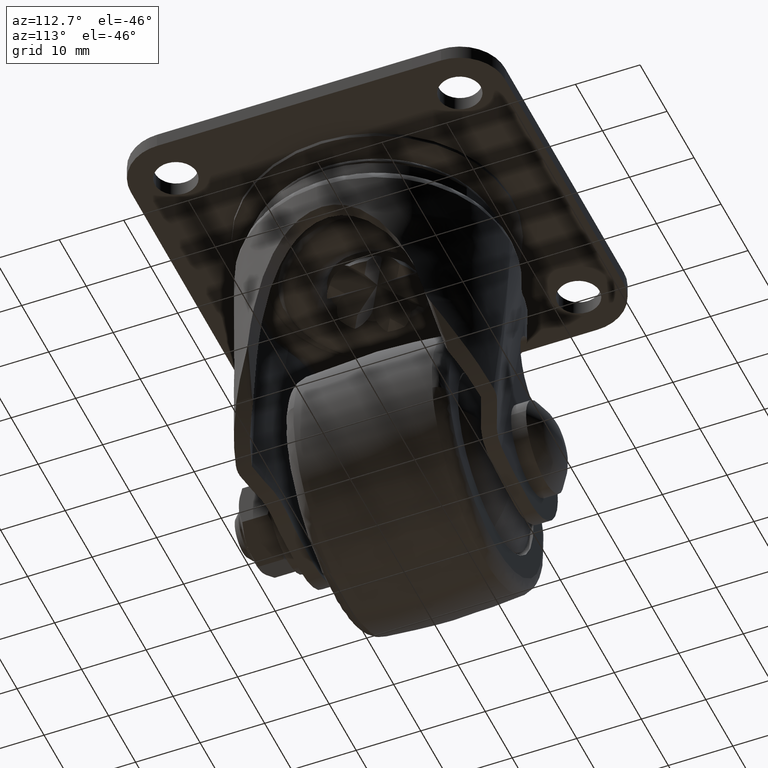
[diagram: clean part render]
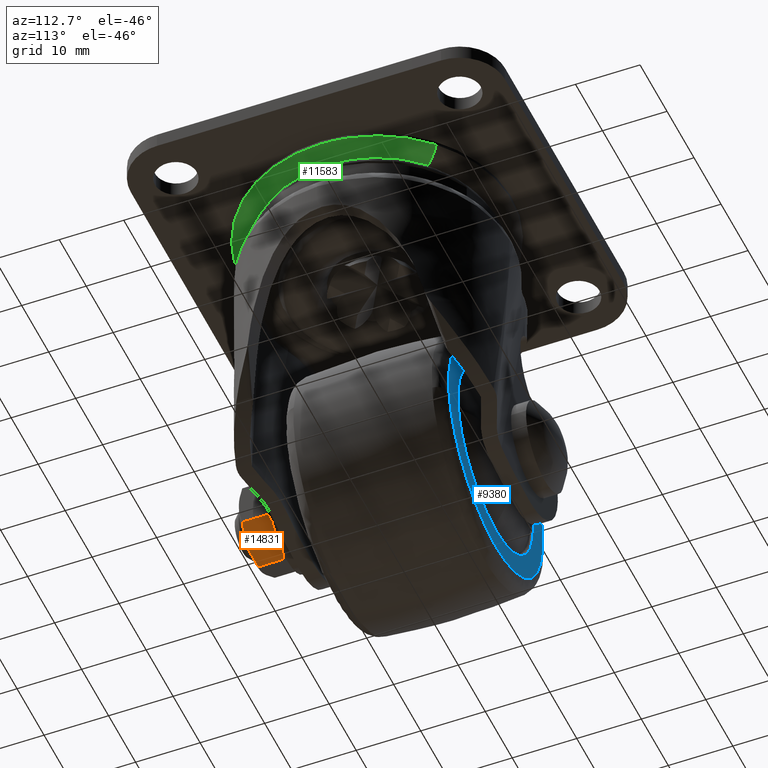
[diagram: same view with three faces highlighted in distinct colors, each labeled with its STEP entity id]
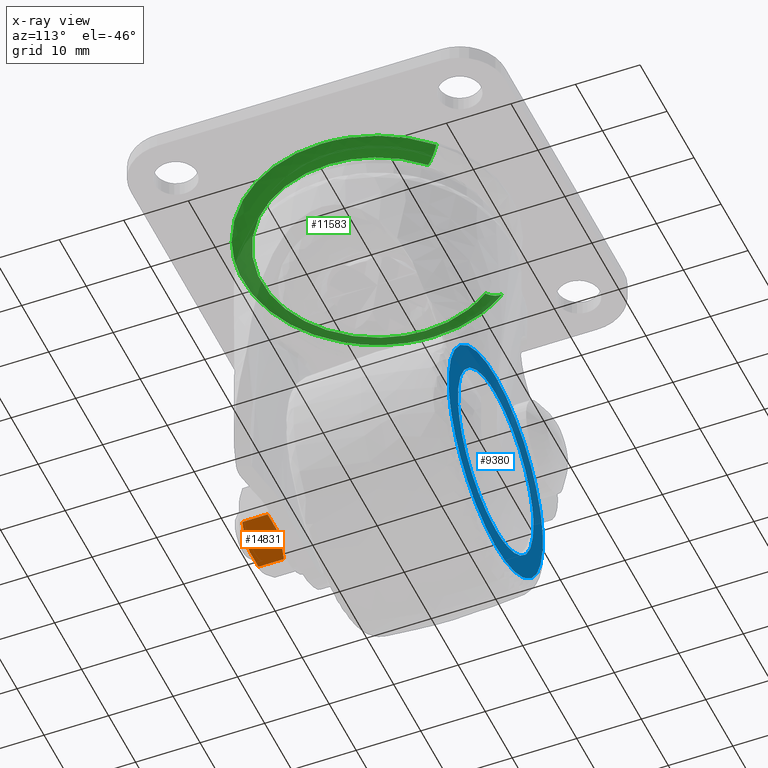
[diagram: x-ray of the same camera — body ghosted, the three highlighted faces saturated]
A machine part, auxiliary view with three faces highlighted in distinct colors.
The next image is the same camera in x-ray (body ghosted, the three faces saturated) — at least one of them is partly hidden behind the body in this view.
Their STEP definitions:

[orange] entity #14831 — the highlighted face is a freeform B-spline surface patch.
#14656=CARTESIAN_POINT('',(-14.0,-24.264096525529201,-46.928187500000099));
#14657=VERTEX_POINT('',#14656);
#14677=CARTESIAN_POINT('',(-8.000005933298899,-24.264099718076199,-43.464084872033098));
#14678=VERTEX_POINT('',#14677);
#14679=CARTESIAN_POINT('',(-14.0,-24.264096525529201,-46.928187500000099));
#14680=CARTESIAN_POINT('',(-13.510160033704130,-24.427376046526771,-46.645377901246221));
#14681=CARTESIAN_POINT('',(-13.016748605405910,-24.561948162100862,-46.360506315301983));
#14682=CARTESIAN_POINT('',(-12.268911799848590,-24.701768662649862,-45.928741981100472));
#14683=CARTESIAN_POINT('',(-12.018342364615959,-24.738011102991891,-45.784075464862568));
#14684=CARTESIAN_POINT('',(-11.514285193123500,-24.787038685045850,-45.493057548344403));
#14685=CARTESIAN_POINT('',(-11.260794935120231,-24.799803556988330,-45.346704692132981));
#14686=CARTESIAN_POINT('',(-10.878212515178010,-24.800085418194449,-45.125820345981559));
#14687=CARTESIAN_POINT('',(-10.750038740140500,-24.797025665904538,-45.051819087645633));
#14688=CARTESIAN_POINT('',(-10.494854432342491,-24.784697134549909,-44.904488170076057));
#14689=CARTESIAN_POINT('',(-10.367705578286440,-24.775442603164539,-44.831078650902882));
#14690=CARTESIAN_POINT('',(-9.987531361267406,-24.738809426387050,-44.611584683138858));
#14691=CARTESIAN_POINT('',(-9.735781318155111,-24.702540461578050,-44.466236541750561));
#14692=CARTESIAN_POINT('',(-8.985013239055673,-24.562488967427690,-44.032779833812242));
#14693=CARTESIAN_POINT('',(-8.490459790177887,-24.427583574715548,-43.747248901134327));
#14694=CARTESIAN_POINT('',(-8.000005933298899,-24.264099718076199,-43.464084872033098));
#14695=B_SPLINE_CURVE_WITH_KNOTS('',3,(#14679,#14680,#14681,#14682,#14683,#14684,#14685,#14686,#14687,#14688,#14689,#14690,#14691,#14692,#14693,#14694),.UNSPECIFIED.,.F.,.U.,(4,2,2,2,2,2,2,4),(0.000001580969679,0.250000000000000,0.375000000000001,0.500000000000002,0.562500000000002,0.625000000000002,0.750000000000001,1.0),.UNSPECIFIED.);
#14696=EDGE_CURVE('',#14657,#14678,#14695,.T.);
#14759=CARTESIAN_POINT('',(-14.0,-20.335906948924901,-46.928187500000099));
#14760=VERTEX_POINT('',#14759);
#14761=CARTESIAN_POINT('',(-14.0,-20.335906948924901,-46.928187500000099));
#14762=CARTESIAN_POINT('',(-14.0,-24.264096525529201,-46.928187500000099));
#14763=QUASI_UNIFORM_CURVE('',1,(#14761,#14762),.UNSPECIFIED.,.F.,.U.);
#14764=EDGE_CURVE('',#14760,#14657,#14763,.T.);
#14796=CARTESIAN_POINT('',(-7.700296950423763,-25.049742740288650,-43.291068394376637));
#14797=CARTESIAN_POINT('',(-14.299693263939711,-25.049742740288650,-47.101230955884468));
#14798=CARTESIAN_POINT('',(-7.700296950423763,-19.550259561729298,-43.291068394376637));
#14799=CARTESIAN_POINT('',(-14.299693263939711,-19.550259561729298,-47.101230955884468));
#14800=B_SPLINE_SURFACE_WITH_KNOTS('',1,1,((#14796,#14798),(#14797,#14799)),.UNSPECIFIED.,.F.,.F.,.U.,(2,2),(2,2),(0.0,7.620326137900116),(0.0,5.499483178559355),.UNSPECIFIED.);
#14801=CARTESIAN_POINT('',(-8.000013789606960,-20.335898000000000,-43.464094038780253));
#14802=VERTEX_POINT('',#14801);
#14803=CARTESIAN_POINT('',(-8.000013789606960,-20.335898000000000,-43.464094038780253));
#14804=CARTESIAN_POINT('',(-8.000005933298899,-24.264099718076199,-43.464084872033098));
#14805=QUASI_UNIFORM_CURVE('',1,(#14803,#14804),.UNSPECIFIED.,.F.,.U.);
#14806=EDGE_CURVE('',#14802,#14678,#14805,.T.);
#14807=ORIENTED_EDGE('',*,*,#14806,.T.);
#14808=ORIENTED_EDGE('',*,*,#14696,.F.);
#14809=ORIENTED_EDGE('',*,*,#14764,.F.);
#14810=CARTESIAN_POINT('',(-8.000013789606960,-20.335898000000000,-43.464094038780253));
#14811=CARTESIAN_POINT('',(-8.489854293159919,-20.172619443458981,-43.746903569652027));
#14812=CARTESIAN_POINT('',(-8.983266226447073,-20.038048526862770,-44.031775066327668));
#14813=CARTESIAN_POINT('',(-9.731103560918101,-19.898230181013101,-44.463539128703303));
#14814=CARTESIAN_POINT('',(-9.981673064135141,-19.861988517311740,-44.608205490797857));
#14815=CARTESIAN_POINT('',(-10.485730325991151,-19.812962525529429,-44.899223070446830));
#14816=CARTESIAN_POINT('',(-10.739220606288219,-19.800198466880769,-45.045575743881123));
#14817=CARTESIAN_POINT('',(-11.121803016198120,-19.799917800744140,-45.266459788956247));
#14818=CARTESIAN_POINT('',(-11.249976769642190,-19.802977947963640,-45.340460935898342));
#14819=CARTESIAN_POINT('',(-11.505160981349350,-19.815307240719019,-45.487791601033869));
#14820=CARTESIAN_POINT('',(-11.632309784315559,-19.824562140008211,-45.561200992574499));
#14821=CARTESIAN_POINT('',(-12.012483840901711,-19.861196372792190,-45.780694574287132));
#14822=CARTESIAN_POINT('',(-12.264233767607459,-19.897465977074649,-45.926042454162797));
#14823=CARTESIAN_POINT('',(-13.014998672064980,-20.037518629107961,-46.359496749764332));
#14824=CARTESIAN_POINT('',(-13.509549115496171,-20.172423829625370,-46.645025565541587));
#14825=CARTESIAN_POINT('',(-14.0,-20.335906948924901,-46.928187500000099));
#14826=B_SPLINE_CURVE_WITH_KNOTS('',3,(#14810,#14811,#14812,#14813,#14814,#14815,#14816,#14817,#14818,#14819,#14820,#14821,#14822,#14823,#14824,#14825),.UNSPECIFIED.,.F.,.U.,(4,2,2,2,2,2,2,4),(0.000001443655214,0.249999999999998,0.374999999999997,0.499999999999996,0.562499999999996,0.624999999999996,0.749999999999997,0.999998596444064),.UNSPECIFIED.);
#14827=EDGE_CURVE('',#14802,#14760,#14826,.T.);
#14828=ORIENTED_EDGE('',*,*,#14827,.F.);
#14829=EDGE_LOOP('',(#14807,#14808,#14809,#14828));
#14830=FACE_OUTER_BOUND('',#14829,.T.);
#14831=ADVANCED_FACE('',(#14830),#14800,.T.);

[blue] entity #9380 — the highlighted face is a freeform B-spline surface patch.
#7484=CARTESIAN_POINT('',(-13.973888161471180,12.500000000000000,-39.145336527961959));
#7485=VERTEX_POINT('',#7484);
#7491=CARTESIAN_POINT('',(0.0,12.500000000000000,-26.0));
#7492=VERTEX_POINT('',#7491);
#7493=CARTESIAN_POINT('',(0.0,12.500000000000000,-26.0));
#7494=CARTESIAN_POINT('',(-13.169900121195921,12.500000000000000,-25.999999999999993));
#7495=CARTESIAN_POINT('',(-13.973888161471171,12.499999999999998,-39.145336527961959));
#7503=(BOUNDED_CURVE()B_SPLINE_CURVE(2,(#7493,#7494,#7495),.UNSPECIFIED.,.F.,.U.)B_SPLINE_CURVE_WITH_KNOTS((3,3),(0.500000000000000,0.739333160812555),.UNSPECIFIED.)CURVE()GEOMETRIC_REPRESENTATION_ITEM()RATIONAL_B_SPLINE_CURVE((1.0,0.719603760643252,0.976072467248138))REPRESENTATION_ITEM(''));
#7504=EDGE_CURVE('',#7492,#7485,#7503,.T.);
#7506=CARTESIAN_POINT('',(13.902134669970600,12.500000000000000,-41.652468340961413));
#7507=VERTEX_POINT('',#7506);
#7508=CARTESIAN_POINT('',(13.902134669970600,12.499999999999998,-41.652468340961413));
#7509=CARTESIAN_POINT('',(14.000000000000002,12.500000000000002,-40.829132145160266));
#7510=CARTESIAN_POINT('',(14.0,12.500000000000000,-40.0));
#7511=CARTESIAN_POINT('',(13.999999999999998,12.499999999999998,-26.000000000000007));
#7512=CARTESIAN_POINT('',(0.0,12.500000000000000,-26.0));
#7520=(BOUNDED_CURVE()B_SPLINE_CURVE(2,(#7508,#7509,#7510,#7511,#7512),.UNSPECIFIED.,.F.,.U.)B_SPLINE_CURVE_WITH_KNOTS((3,2,3),(0.229562606560769,0.250000000000000,0.500000000000000),.UNSPECIFIED.)CURVE()GEOMETRIC_REPRESENTATION_ITEM()RATIONAL_B_SPLINE_CURVE((0.956027014961940,0.976056104205706,1.0,0.707106781186547,1.0))REPRESENTATION_ITEM(''));
#7521=EDGE_CURVE('',#7507,#7492,#7520,.T.);
#7565=CARTESIAN_POINT('',(0.0,12.500000000000000,-54.0));
#7566=VERTEX_POINT('',#7565);
#7567=CARTESIAN_POINT('',(0.0,12.500000000000000,-54.0));
#7568=CARTESIAN_POINT('',(12.434453221049468,12.500000000000000,-54.0));
#7569=CARTESIAN_POINT('',(13.902134669970600,12.499999999999998,-41.652468340961413));
#7577=(BOUNDED_CURVE()B_SPLINE_CURVE(2,(#7567,#7568,#7569),.UNSPECIFIED.,.F.,.U.)B_SPLINE_CURVE_WITH_KNOTS((3,3),(0.0,0.229562606560769),.UNSPECIFIED.)CURVE()GEOMETRIC_REPRESENTATION_ITEM()RATIONAL_B_SPLINE_CURVE((1.0,0.731050676980841,0.956027014961940))REPRESENTATION_ITEM(''));
#7578=EDGE_CURVE('',#7566,#7507,#7577,.T.);
#7580=CARTESIAN_POINT('',(-13.973888161471171,12.499999999999998,-39.145336527961959));
#7581=CARTESIAN_POINT('',(-14.000000000000002,12.500000000000004,-39.572269377089434));
#7582=CARTESIAN_POINT('',(-14.0,12.500000000000000,-40.0));
#7583=CARTESIAN_POINT('',(-13.999999999999998,12.499999999999998,-54.0));
#7584=CARTESIAN_POINT('',(0.0,12.500000000000000,-54.0));
#7592=(BOUNDED_CURVE()B_SPLINE_CURVE(2,(#7580,#7581,#7582,#7583,#7584),.UNSPECIFIED.,.F.,.U.)B_SPLINE_CURVE_WITH_KNOTS((3,2,3),(0.739333160812555,0.750000000000000,1.0),.UNSPECIFIED.)CURVE()GEOMETRIC_REPRESENTATION_ITEM()RATIONAL_B_SPLINE_CURVE((0.976072467248138,0.987503020543295,1.0,0.707106781186547,1.0))REPRESENTATION_ITEM(''));
#7593=EDGE_CURVE('',#7485,#7566,#7592,.T.);
#8616=CARTESIAN_POINT('',(17.298389258254691,12.500000000000000,-42.185294763170852));
#8617=VERTEX_POINT('',#8616);
#8618=CARTESIAN_POINT('',(0.0,12.500000000000000,-22.564123650474698));
#8619=VERTEX_POINT('',#8618);
#8620=CARTESIAN_POINT('',(17.298389258254691,12.499999999999998,-42.185294763170845));
#8621=CARTESIAN_POINT('',(17.435876349525305,12.500000000000004,-41.096972358862651));
#8622=CARTESIAN_POINT('',(17.435876349525302,12.500000000000000,-40.0));
#8623=CARTESIAN_POINT('',(17.435876349525309,12.499999999999998,-22.564123650474709));
#8624=CARTESIAN_POINT('',(0.0,12.500000000000000,-22.564123650474698));
#8632=(BOUNDED_CURVE()B_SPLINE_CURVE(2,(#8620,#8621,#8622,#8623,#8624),.UNSPECIFIED.,.F.,.U.)B_SPLINE_CURVE_WITH_KNOTS((3,2,3),(0.228321256480458,0.250000000000000,0.500000000000000),.UNSPECIFIED.)CURVE()GEOMETRIC_REPRESENTATION_ITEM()RATIONAL_B_SPLINE_CURVE((0.953608357589826,0.974601772122921,1.0,0.707106781186547,1.0))REPRESENTATION_ITEM(''));
#8633=EDGE_CURVE('',#8617,#8619,#8632,.T.);
#8635=CARTESIAN_POINT('',(-17.298389258193861,12.500000000000000,-37.814705236837852));
#8636=VERTEX_POINT('',#8635);
#8637=CARTESIAN_POINT('',(0.0,12.500000000000000,-22.564123650474698));
#8638=CARTESIAN_POINT('',(-15.371792763788882,12.500000000000000,-22.564123650474698));
#8639=CARTESIAN_POINT('',(-17.298389258193858,12.500000000000004,-37.814705236837852));
#8647=(BOUNDED_CURVE()B_SPLINE_CURVE(2,(#8637,#8638,#8639),.UNSPECIFIED.,.F.,.U.)B_SPLINE_CURVE_WITH_KNOTS((3,3),(0.500000000000000,0.728321256480477),.UNSPECIFIED.)CURVE()GEOMETRIC_REPRESENTATION_ITEM()RATIONAL_B_SPLINE_CURVE((1.0,0.732505009063605,0.953608357589862))REPRESENTATION_ITEM(''));
#8648=EDGE_CURVE('',#8619,#8636,#8647,.T.);
#8736=CARTESIAN_POINT('',(0.0,12.500000000000000,-57.435876349525302));
#8737=VERTEX_POINT('',#8736);
#8738=CARTESIAN_POINT('',(0.0,12.500000000000000,-57.435876349525302));
#8739=CARTESIAN_POINT('',(15.371792763787148,12.499999999999996,-57.435876349525294));
#8740=CARTESIAN_POINT('',(17.298389258254691,12.499999999999998,-42.185294763170845));
#8748=(BOUNDED_CURVE()B_SPLINE_CURVE(2,(#8738,#8739,#8740),.UNSPECIFIED.,.F.,.U.)B_SPLINE_CURVE_WITH_KNOTS((3,3),(0.0,0.228321256480458),.UNSPECIFIED.)CURVE()GEOMETRIC_REPRESENTATION_ITEM()RATIONAL_B_SPLINE_CURVE((1.0,0.732505009063627,0.953608357589826))REPRESENTATION_ITEM(''));
#8749=EDGE_CURVE('',#8737,#8617,#8748,.T.);
#8798=CARTESIAN_POINT('',(-17.298389258193858,12.500000000000000,-37.814705236837845));
#8799=CARTESIAN_POINT('',(-17.435876349525305,12.500000000000000,-38.903027641138372));
#8800=CARTESIAN_POINT('',(-17.435876349525302,12.500000000000000,-40.0));
#8801=CARTESIAN_POINT('',(-17.435876349525309,12.499999999999998,-57.435876349525294));
#8802=CARTESIAN_POINT('',(0.0,12.500000000000000,-57.435876349525302));
#8810=(BOUNDED_CURVE()B_SPLINE_CURVE(2,(#8798,#8799,#8800,#8801,#8802),.UNSPECIFIED.,.F.,.U.)B_SPLINE_CURVE_WITH_KNOTS((3,2,3),(0.728321256480478,0.750000000000000,1.0),.UNSPECIFIED.)CURVE()GEOMETRIC_REPRESENTATION_ITEM()RATIONAL_B_SPLINE_CURVE((0.953608357589863,0.974601772122943,1.0,0.707106781186547,1.0))REPRESENTATION_ITEM(''));
#8811=EDGE_CURVE('',#8636,#8737,#8810,.T.);
#9363=CARTESIAN_POINT('',(-19.176206239059809,12.500000000000000,-20.822279140629622));
#9364=CARTESIAN_POINT('',(-19.176206239059809,12.500000000000000,-59.177718676926027));
#9365=CARTESIAN_POINT('',(19.176205927548359,12.500000000000000,-20.822279140629622));
#9366=CARTESIAN_POINT('',(19.176205927548359,12.500000000000000,-59.177718676926027));
#9367=B_SPLINE_SURFACE_WITH_KNOTS('',1,1,((#9363,#9365),(#9364,#9366)),.UNSPECIFIED.,.F.,.F.,.U.,(2,2),(2,2),(0.0,38.355439536296423),(0.0,38.352412166608168),.UNSPECIFIED.);
#9368=ORIENTED_EDGE('',*,*,#8811,.F.);
#9369=ORIENTED_EDGE('',*,*,#8648,.F.);
#9370=ORIENTED_EDGE('',*,*,#8633,.F.);
#9371=ORIENTED_EDGE('',*,*,#8749,.F.);
#9372=EDGE_LOOP('',(#9368,#9369,#9370,#9371));
#9373=FACE_OUTER_BOUND('',#9372,.T.);
#9374=ORIENTED_EDGE('',*,*,#7504,.T.);
#9375=ORIENTED_EDGE('',*,*,#7593,.T.);
#9376=ORIENTED_EDGE('',*,*,#7578,.T.);
#9377=ORIENTED_EDGE('',*,*,#7521,.T.);
#9378=EDGE_LOOP('',(#9374,#9375,#9376,#9377));
#9379=FACE_BOUND('',#9378,.T.);
#9380=ADVANCED_FACE('',(#9373,#9379),#9367,.F.);

[green] entity #11583 — the highlighted face is a freeform B-spline surface patch.
#10264=CARTESIAN_POINT('',(-19.495255264781850,-7.322461178827341,-2.864284000001127));
#10265=VERTEX_POINT('',#10264);
#10266=CARTESIAN_POINT('',(-20.825067000000001,0.0,-2.864284000000110));
#10267=VERTEX_POINT('',#10266);
#10268=CARTESIAN_POINT('',(-19.495255264781843,-7.322461178827341,-2.864284000001127));
#10269=CARTESIAN_POINT('',(-20.825067000000008,-3.781982288052725,-2.864284000000110));
#10270=CARTESIAN_POINT('',(-20.825067000000001,0.0,-2.864284000000110));
#10278=(BOUNDED_CURVE()B_SPLINE_CURVE(2,(#10268,#10269,#10270),.UNSPECIFIED.,.F.,.U.)B_SPLINE_CURVE_WITH_KNOTS((3,3),(0.940284225151957,1.0),.UNSPECIFIED.)CURVE()GEOMETRIC_REPRESENTATION_ITEM()RATIONAL_B_SPLINE_CURVE((0.893499621028645,0.930038617963269,1.0))REPRESENTATION_ITEM(''));
#10279=EDGE_CURVE('',#10265,#10267,#10278,.T.);
#10335=CARTESIAN_POINT('',(1.271318850660788,-20.786225341172401,-2.864283999999349));
#10336=VERTEX_POINT('',#10335);
#10342=CARTESIAN_POINT('',(20.825067000000001,0.0,-2.864284000000110));
#10343=VERTEX_POINT('',#10342);
#10344=CARTESIAN_POINT('',(20.825067000000001,0.0,-2.864284000000110));
#10345=CARTESIAN_POINT('',(20.825066999999997,-19.590286770552471,-2.864284000000111));
#10346=CARTESIAN_POINT('',(1.271318850660788,-20.786225341172393,-2.864283999999349));
#10354=(BOUNDED_CURVE()B_SPLINE_CURVE(2,(#10344,#10345,#10346),.UNSPECIFIED.,.F.,.U.)B_SPLINE_CURVE_WITH_KNOTS((3,3),(0.500000000000000,0.739333137189275),.UNSPECIFIED.)CURVE()GEOMETRIC_REPRESENTATION_ITEM()RATIONAL_B_SPLINE_CURVE((1.0,0.719603788319647,0.976072416618869))REPRESENTATION_ITEM(''));
#10355=EDGE_CURVE('',#10343,#10336,#10354,.T.);
#10357=CARTESIAN_POINT('',(14.295538754107380,15.143346601696919,-2.864284780636024));
#10358=VERTEX_POINT('',#10357);
#10359=CARTESIAN_POINT('',(14.295538754107383,15.143346601696928,-2.864284780636025));
#10360=CARTESIAN_POINT('',(20.825066662250617,8.979378261955336,-2.864284390318067));
#10361=CARTESIAN_POINT('',(20.825067000000001,0.0,-2.864284000000110));
#10369=(BOUNDED_CURVE()B_SPLINE_CURVE(2,(#10359,#10360,#10361),.UNSPECIFIED.,.F.,.U.)B_SPLINE_CURVE_WITH_KNOTS((3,3),(0.370655480487412,0.500000000000000),.UNSPECIFIED.)CURVE()GEOMETRIC_REPRESENTATION_ITEM()RATIONAL_B_SPLINE_CURVE((0.853730296689631,0.848463469376314,1.0))REPRESENTATION_ITEM(''));
#10370=EDGE_CURVE('',#10358,#10343,#10369,.T.);
#10372=CARTESIAN_POINT('',(-16.692685958144981,12.451411177577100,-2.864283807673140));
#10373=VERTEX_POINT('',#10372);
#10389=CARTESIAN_POINT('',(-20.825067000000001,0.0,-2.864284000000110));
#10390=CARTESIAN_POINT('',(-20.825067000000001,6.911434010718635,-2.864284000000110));
#10391=CARTESIAN_POINT('',(-16.692685958144988,12.451411177577107,-2.864283807673140));
#10399=(BOUNDED_CURVE()B_SPLINE_CURVE(2,(#10389,#10390,#10391),.UNSPECIFIED.,.F.,.U.)B_SPLINE_CURVE_WITH_KNOTS((3,3),(0.0,0.103156604495249),.UNSPECIFIED.)CURVE()GEOMETRIC_REPRESENTATION_ITEM()RATIONAL_B_SPLINE_CURVE((1.0,0.879144520270081,0.858025367928825))REPRESENTATION_ITEM(''));
#10400=EDGE_CURVE('',#10267,#10373,#10399,.T.);
#10419=CARTESIAN_POINT('',(1.271318850660788,-20.786225341172393,-2.864283999999349));
#10420=CARTESIAN_POINT('',(0.636252775480004,-20.825067000000001,-2.864284000000111));
#10421=CARTESIAN_POINT('',(0.0,-20.825067000000001,-2.864284000000110));
#10422=CARTESIAN_POINT('',(-14.423646527391680,-20.825067000000004,-2.864284000000110));
#10423=CARTESIAN_POINT('',(-19.495255264781843,-7.322461178827341,-2.864284000001127));
#10431=(BOUNDED_CURVE()B_SPLINE_CURVE(2,(#10419,#10420,#10421,#10422,#10423),.UNSPECIFIED.,.F.,.U.)B_SPLINE_CURVE_WITH_KNOTS((3,2,3),(0.739333137189275,0.750000000000000,0.940284225151957),.UNSPECIFIED.)CURVE()GEOMETRIC_REPRESENTATION_ITEM()RATIONAL_B_SPLINE_CURVE((0.976072416618869,0.987502992866901,1.0,0.777068163223278,0.893499621028645))REPRESENTATION_ITEM(''));
#10432=EDGE_CURVE('',#10336,#10265,#10431,.T.);
#11472=CARTESIAN_POINT('',(14.359480989599623,15.211079956046746,-2.733494125388183));
#11473=CARTESIAN_POINT('',(27.904821451074302,2.424081306626003,-2.733494125388183));
#11474=CARTESIAN_POINT('',(16.767349164832581,-12.507103969524996,-2.733494125388182));
#11475=CARTESIAN_POINT('',(4.260245195307593,-29.274453134357579,-2.733494125388184));
#11476=CARTESIAN_POINT('',(-12.507103969524996,-16.767349164832581,-2.733494125388182));
#11477=CARTESIAN_POINT('',(-29.274453134357579,-4.260245195307580,-2.733494125388184));
#11478=CARTESIAN_POINT('',(-16.767349164832591,12.507103969524984,-2.733494125388182));
#11479=CARTESIAN_POINT('',(13.581608622212897,14.387075329104517,-4.401901911493991));
#11480=CARTESIAN_POINT('',(26.393179801952527,2.292765567144275,-4.401901911493991));
#11481=CARTESIAN_POINT('',(15.859039345062982,-11.829577352722277,-4.401901911493990));
#11482=CARTESIAN_POINT('',(4.029461992340711,-27.688616697785257,-4.401901911493992));
#11483=CARTESIAN_POINT('',(-11.829577352722273,-15.859039345062982,-4.401901911493990));
#11484=CARTESIAN_POINT('',(-27.688616697785257,-4.029461992340698,-4.401901911493992));
#11485=CARTESIAN_POINT('',(-15.859039345062994,11.829577352722264,-4.401901911493990));
#11486=CARTESIAN_POINT('',(12.198507662304303,12.921948608738193,-4.311962966241957));
#11487=CARTESIAN_POINT('',(23.705395656897931,2.059278772982339,-4.311962966241957));
#11488=CARTESIAN_POINT('',(14.244013235010714,-10.624896799263848,-4.311962966241957));
#11489=CARTESIAN_POINT('',(3.619116435746870,-24.868910034274560,-4.311962966241957));
#11490=CARTESIAN_POINT('',(-10.624896799263846,-14.244013235010714,-4.311962966241957));
#11491=CARTESIAN_POINT('',(-24.868910034274560,-3.619116435746860,-4.311962966241957));
#11492=CARTESIAN_POINT('',(-14.244013235010726,10.624896799263841,-4.311962966241957));
#11500=(BOUNDED_SURFACE()B_SPLINE_SURFACE(2,2,((#11472,#11479,#11486),(#11473,#11480,#11487),(#11474,#11481,#11488),(#11475,#11482,#11489),(#11476,#11483,#11490),(#11477,#11484,#11491),(#11478,#11485,#11492)),.UNSPECIFIED.,.F.,.F.,.U.)B_SPLINE_SURFACE_WITH_KNOTS((3,2,2,3),(3,3),(0.0,31.885756152088199,66.544186752184075,101.202617352280000),(0.0,3.760271660812863),.UNSPECIFIED.)GEOMETRIC_REPRESENTATION_ITEM()RATIONAL_B_SPLINE_SURFACE(((0.888200472981291,0.774203598194514,0.885379346962293),(0.678099929345545,0.591068594539946,0.675946130273883),(0.928219624150004,0.809086456033479,0.925271388236276),(0.656350390666896,0.572110519627465,0.654265673059761),(0.928219624150004,0.809086456033479,0.925271388236276),(0.656350390666896,0.572110519627465,0.654265673059761),(0.928219624150004,0.809086456033479,0.925271388236276)))REPRESENTATION_ITEM('')SURFACE());
#11501=ORIENTED_EDGE('',*,*,#10370,.T.);
#11502=ORIENTED_EDGE('',*,*,#10355,.T.);
#11503=ORIENTED_EDGE('',*,*,#10432,.T.);
#11504=ORIENTED_EDGE('',*,*,#10279,.T.);
#11505=ORIENTED_EDGE('',*,*,#10400,.T.);
#11506=CARTESIAN_POINT('',(-14.373081164638590,10.721171171507150,-4.315555000000105));
#11507=VERTEX_POINT('',#11506);
#11508=CARTESIAN_POINT('',(-16.692685958144978,12.451411177577109,-2.864283807673139));
#11509=CARTESIAN_POINT('',(-15.824581122555569,11.803874269469905,-4.315554999899314));
#11510=CARTESIAN_POINT('',(-14.373081164638586,10.721171171507146,-4.315555000000105));
#11518=(BOUNDED_CURVE()B_SPLINE_CURVE(2,(#11508,#11509,#11510),.UNSPECIFIED.,.F.,.U.)B_SPLINE_CURVE_WITH_KNOTS((3,3),(-1.615103196309702,-0.401619111092446),.UNSPECIFIED.)CURVE()GEOMETRIC_REPRESENTATION_ITEM()RATIONAL_B_SPLINE_CURVE((0.917884485627975,0.819287711682197,0.915204015793526))REPRESENTATION_ITEM(''));
#11519=EDGE_CURVE('',#10373,#11507,#11518,.T.);
#11520=ORIENTED_EDGE('',*,*,#11519,.T.);
#11521=CARTESIAN_POINT('',(-17.931228999999998,0.0,-4.315555000000106));
#11522=VERTEX_POINT('',#11521);
#11523=CARTESIAN_POINT('',(-17.931228999999998,0.0,-4.315555000000106));
#11524=CARTESIAN_POINT('',(-17.931229000000002,5.951025558018790,-4.315555000000106));
#11525=CARTESIAN_POINT('',(-14.373081164638590,10.721171171507146,-4.315555000000105));
#11533=(BOUNDED_CURVE()B_SPLINE_CURVE(2,(#11523,#11524,#11525),.UNSPECIFIED.,.F.,.U.)B_SPLINE_CURVE_WITH_KNOTS((3,3),(0.0,0.103156604495154),.UNSPECIFIED.)CURVE()GEOMETRIC_REPRESENTATION_ITEM()RATIONAL_B_SPLINE_CURVE((1.0,0.879144520270193,0.858025367928864))REPRESENTATION_ITEM(''));
#11534=EDGE_CURVE('',#11522,#11507,#11533,.T.);
#11535=ORIENTED_EDGE('',*,*,#11534,.F.);
#11536=CARTESIAN_POINT('',(17.931228999999998,0.0,-4.315555000000106));
#11537=VERTEX_POINT('',#11536);
#11538=CARTESIAN_POINT('',(17.931228999999998,0.0,-4.315555000000106));
#11539=CARTESIAN_POINT('',(17.931228999999995,-17.931228999999995,-4.315555000000106));
#11540=CARTESIAN_POINT('',(0.0,-17.931228999999998,-4.315555000000106));
#11541=CARTESIAN_POINT('',(-17.931228999999995,-17.931228999999995,-4.315555000000106));
#11542=CARTESIAN_POINT('',(-17.931228999999998,0.0,-4.315555000000106));
#11550=(BOUNDED_CURVE()B_SPLINE_CURVE(2,(#11538,#11539,#11540,#11541,#11542),.UNSPECIFIED.,.F.,.U.)B_SPLINE_CURVE_WITH_KNOTS((3,2,3),(0.500000000000000,0.750000000000000,1.0),.UNSPECIFIED.)CURVE()GEOMETRIC_REPRESENTATION_ITEM()RATIONAL_B_SPLINE_CURVE((1.0,0.707106781186547,1.0,0.707106781186547,1.0))REPRESENTATION_ITEM(''));
#11551=EDGE_CURVE('',#11537,#11522,#11550,.T.);
#11552=ORIENTED_EDGE('',*,*,#11551,.F.);
#11553=CARTESIAN_POINT('',(12.309040846119240,13.039037039578000,-4.315555000000104));
#11554=VERTEX_POINT('',#11553);
#11555=CARTESIAN_POINT('',(12.309040846119238,13.039037039577991,-4.315555000000104));
#11556=CARTESIAN_POINT('',(17.931228999999995,7.731609548507189,-4.315555000000106));
#11557=CARTESIAN_POINT('',(17.931228999999998,0.0,-4.315555000000106));
#11565=(BOUNDED_CURVE()B_SPLINE_CURVE(2,(#11555,#11556,#11557),.UNSPECIFIED.,.F.,.U.)B_SPLINE_CURVE_WITH_KNOTS((3,3),(0.370655485560283,0.500000000000000),.UNSPECIFIED.)CURVE()GEOMETRIC_REPRESENTATION_ITEM()RATIONAL_B_SPLINE_CURVE((0.853730296276503,0.848463475319553,1.0))REPRESENTATION_ITEM(''));
#11566=EDGE_CURVE('',#11554,#11537,#11565,.T.);
#11567=ORIENTED_EDGE('',*,*,#11566,.F.);
#11568=CARTESIAN_POINT('',(14.295538754107376,15.143346601696926,-2.864284780636024));
#11569=CARTESIAN_POINT('',(13.552098237177107,14.355814810243272,-4.315554999427379));
#11570=CARTESIAN_POINT('',(12.309040846119231,13.039037039577995,-4.315555000000105));
#11578=(BOUNDED_CURVE()B_SPLINE_CURVE(2,(#11568,#11569,#11570),.UNSPECIFIED.,.F.,.U.)B_SPLINE_CURVE_WITH_KNOTS((3,3),(-1.615102740637330,-0.401619111444668),.UNSPECIFIED.)CURVE()GEOMETRIC_REPRESENTATION_ITEM()RATIONAL_B_SPLINE_CURVE((0.878310851544836,0.783965072604716,0.875746017971890))REPRESENTATION_ITEM(''));
#11579=EDGE_CURVE('',#10358,#11554,#11578,.T.);
#11580=ORIENTED_EDGE('',*,*,#11579,.F.);
#11581=EDGE_LOOP('',(#11501,#11502,#11503,#11504,#11505,#11520,#11535,#11552,#11567,#11580));
#11582=FACE_OUTER_BOUND('',#11581,.T.);
#11583=ADVANCED_FACE('',(#11582),#11500,.T.);